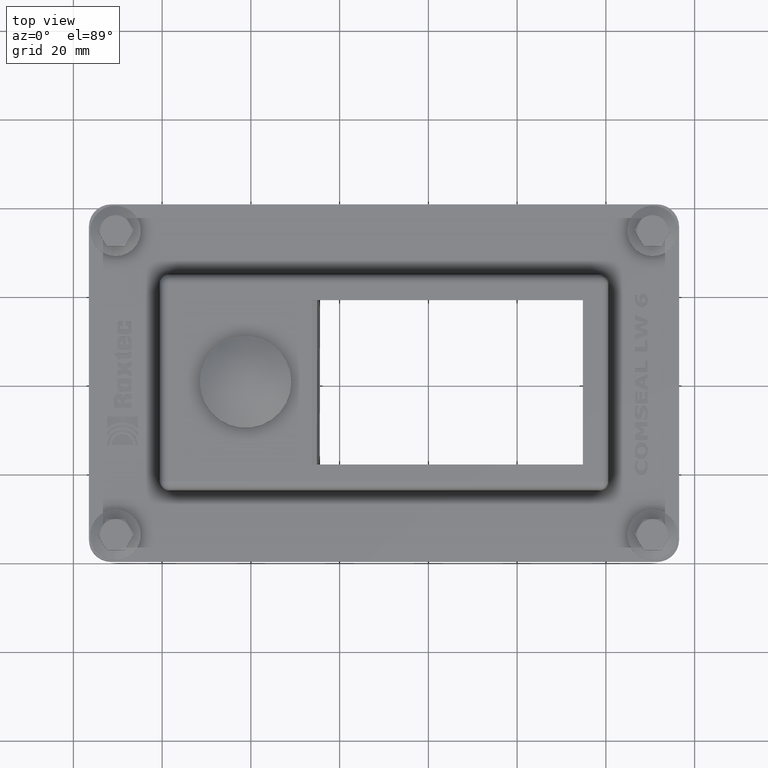
[diagram: clean part render]
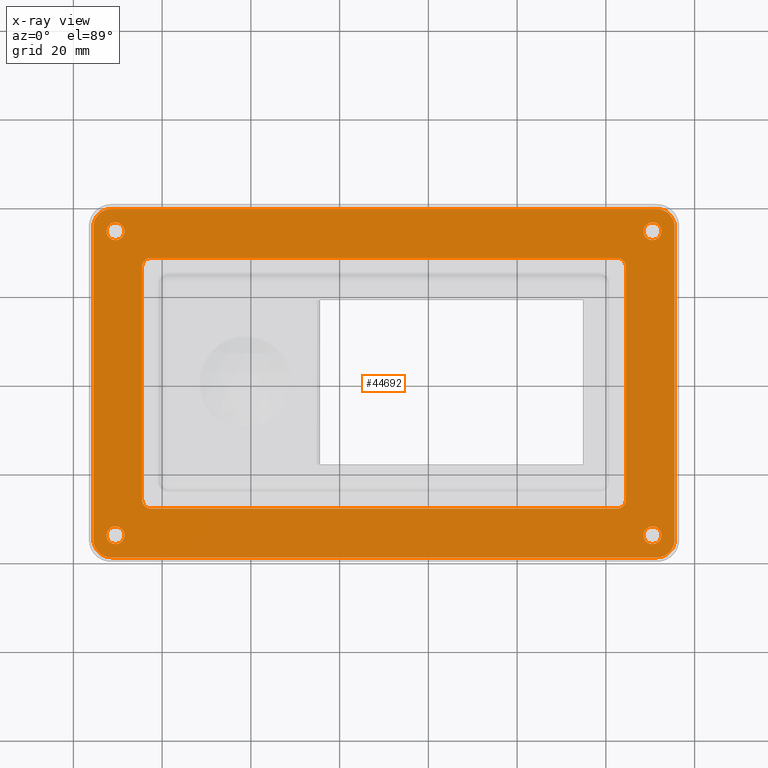
[diagram: x-ray — body ghosted, one internal face saturated and labeled with its STEP entity id]
A machine part, top view, then the same camera in x-ray: the body is ghosted and one INTERNAL B-rep face — a face not visible from any outside direction — is saturated and labeled: STEP entity #44692.
In plain terms, the highlighted planar face has unit normal (-0, -0, -1).
Its self-contained STEP definition (entity closure, byte-faithful):
#44463=CARTESIAN_POINT('',(65.5,35.25,0.0));
#44464=VERTEX_POINT('',#44463);
#44471=CARTESIAN_POINT('',(61.5,39.25,0.0));
#44472=VERTEX_POINT('',#44471);
#44473=CARTESIAN_POINT('',(61.5,35.25,0.0));
#44474=DIRECTION('',(0.0,0.0,1.0));
#44475=DIRECTION('',(0.707106781186548,0.707106781186547,0.0));
#44476=AXIS2_PLACEMENT_3D('',#44473,#44474,#44475);
#44477=CIRCLE('',#44476,4.0);
#44478=EDGE_CURVE('',#44464,#44472,#44477,.T.);
#44495=CARTESIAN_POINT('',(-61.5,39.25,0.0));
#44496=VERTEX_POINT('',#44495);
#44497=CARTESIAN_POINT('',(-61.5,39.25,0.0));
#44498=DIRECTION('',(1.0,0.0,0.0));
#44499=VECTOR('',#44498,123.00000000000001);
#44500=LINE('',#44497,#44499);
#44501=EDGE_CURVE('',#44496,#44472,#44500,.T.);
#44520=CARTESIAN_POINT('',(0.0,-4.538208E-016,0.0));
#44521=DIRECTION('',(0.0,0.0,1.0));
#44522=DIRECTION('',(1.0,0.0,0.0));
#44523=AXIS2_PLACEMENT_3D('',#44520,#44521,#44522);
#44524=PLANE('',#44523);
#44525=ORIENTED_EDGE('',*,*,#44478,.F.);
#44526=CARTESIAN_POINT('',(65.5,-35.249999999999993,0.0));
#44527=VERTEX_POINT('',#44526);
#44528=CARTESIAN_POINT('',(65.5,35.25,0.0));
#44529=DIRECTION('',(0.0,-1.0,0.0));
#44530=VECTOR('',#44529,70.5);
#44531=LINE('',#44528,#44530);
#44532=EDGE_CURVE('',#44464,#44527,#44531,.T.);
#44533=ORIENTED_EDGE('',*,*,#44532,.T.);
#44534=CARTESIAN_POINT('',(61.5,-39.25,0.0));
#44535=VERTEX_POINT('',#44534);
#44536=CARTESIAN_POINT('',(61.5,-35.249999999999993,0.0));
#44537=DIRECTION('',(0.0,0.0,1.0));
#44538=DIRECTION('',(0.707106781186548,-0.707106781186548,0.0));
#44539=AXIS2_PLACEMENT_3D('',#44536,#44537,#44538);
#44540=CIRCLE('',#44539,4.0);
#44541=EDGE_CURVE('',#44535,#44527,#44540,.T.);
#44542=ORIENTED_EDGE('',*,*,#44541,.F.);
#44543=CARTESIAN_POINT('',(-61.5,-39.25,0.0));
#44544=VERTEX_POINT('',#44543);
#44545=CARTESIAN_POINT('',(61.5,-39.25,0.0));
#44546=DIRECTION('',(-1.0,0.0,0.0));
#44547=VECTOR('',#44546,123.00000000000001);
#44548=LINE('',#44545,#44547);
#44549=EDGE_CURVE('',#44535,#44544,#44548,.T.);
#44550=ORIENTED_EDGE('',*,*,#44549,.T.);
#44551=CARTESIAN_POINT('',(-65.5,-35.25,0.0));
#44552=VERTEX_POINT('',#44551);
#44553=CARTESIAN_POINT('',(-61.5,-35.25,0.0));
#44554=DIRECTION('',(0.0,0.0,1.0));
#44555=DIRECTION('',(-0.707106781186548,-0.707106781186547,0.0));
#44556=AXIS2_PLACEMENT_3D('',#44553,#44554,#44555);
#44557=CIRCLE('',#44556,4.0);
#44558=EDGE_CURVE('',#44552,#44544,#44557,.T.);
#44559=ORIENTED_EDGE('',*,*,#44558,.F.);
#44560=CARTESIAN_POINT('',(-65.5,35.249999999999993,0.0));
#44561=VERTEX_POINT('',#44560);
#44562=CARTESIAN_POINT('',(-65.5,-35.25,0.0));
#44563=DIRECTION('',(0.0,1.0,0.0));
#44564=VECTOR('',#44563,70.5);
#44565=LINE('',#44562,#44564);
#44566=EDGE_CURVE('',#44552,#44561,#44565,.T.);
#44567=ORIENTED_EDGE('',*,*,#44566,.T.);
#44568=CARTESIAN_POINT('',(-61.5,35.249999999999993,0.0));
#44569=DIRECTION('',(0.0,0.0,1.0));
#44570=DIRECTION('',(-0.707106781186548,0.707106781186548,0.0));
#44571=AXIS2_PLACEMENT_3D('',#44568,#44569,#44570);
#44572=CIRCLE('',#44571,4.0);
#44573=EDGE_CURVE('',#44496,#44561,#44572,.T.);
#44574=ORIENTED_EDGE('',*,*,#44573,.F.);
#44575=ORIENTED_EDGE('',*,*,#44501,.T.);
#44576=EDGE_LOOP('',(#44525,#44533,#44542,#44550,#44559,#44567,#44574,#44575));
#44577=FACE_OUTER_BOUND('',#44576,.T.);
#44578=CARTESIAN_POINT('',(-58.500000000000007,-34.25,0.0));
#44579=VERTEX_POINT('',#44578);
#44580=CARTESIAN_POINT('',(-60.500000000000007,-34.25,0.0));
#44581=DIRECTION('',(0.0,0.0,1.0));
#44582=DIRECTION('',(-1.0,0.0,0.0));
#44583=AXIS2_PLACEMENT_3D('',#44580,#44581,#44582);
#44584=CIRCLE('',#44583,1.999999999999999);
#44585=EDGE_CURVE('',#44579,#44579,#44584,.T.);
#44586=ORIENTED_EDGE('',*,*,#44585,.T.);
#44587=EDGE_LOOP('',(#44586));
#44588=FACE_BOUND('',#44587,.T.);
#44589=CARTESIAN_POINT('',(62.500000000000007,-34.25,0.0));
#44590=VERTEX_POINT('',#44589);
#44591=CARTESIAN_POINT('',(60.500000000000007,-34.25,0.0));
#44592=DIRECTION('',(0.0,0.0,1.0));
#44593=DIRECTION('',(-1.0,0.0,0.0));
#44594=AXIS2_PLACEMENT_3D('',#44591,#44592,#44593);
#44595=CIRCLE('',#44594,2.000000000000001);
#44596=EDGE_CURVE('',#44590,#44590,#44595,.T.);
#44597=ORIENTED_EDGE('',*,*,#44596,.T.);
#44598=EDGE_LOOP('',(#44597));
#44599=FACE_BOUND('',#44598,.T.);
#44600=CARTESIAN_POINT('',(62.500000000000007,34.25,0.0));
#44601=VERTEX_POINT('',#44600);
#44602=CARTESIAN_POINT('',(60.500000000000007,34.25,0.0));
#44603=DIRECTION('',(0.0,0.0,1.0));
#44604=DIRECTION('',(-1.0,0.0,0.0));
#44605=AXIS2_PLACEMENT_3D('',#44602,#44603,#44604);
#44606=CIRCLE('',#44605,2.0);
#44607=EDGE_CURVE('',#44601,#44601,#44606,.T.);
#44608=ORIENTED_EDGE('',*,*,#44607,.T.);
#44609=EDGE_LOOP('',(#44608));
#44610=FACE_BOUND('',#44609,.T.);
#44611=CARTESIAN_POINT('',(-58.500000000000007,34.25,0.0));
#44612=VERTEX_POINT('',#44611);
#44613=CARTESIAN_POINT('',(-60.500000000000007,34.25,0.0));
#44614=DIRECTION('',(0.0,0.0,1.0));
#44615=DIRECTION('',(-1.0,0.0,0.0));
#44616=AXIS2_PLACEMENT_3D('',#44613,#44614,#44615);
#44617=CIRCLE('',#44616,2.0);
#44618=EDGE_CURVE('',#44612,#44612,#44617,.T.);
#44619=ORIENTED_EDGE('',*,*,#44618,.T.);
#44620=EDGE_LOOP('',(#44619));
#44621=FACE_BOUND('',#44620,.T.);
#44622=CARTESIAN_POINT('',(54.500000000000014,-26.249999999999993,0.0));
#44623=VERTEX_POINT('',#44622);
#44624=CARTESIAN_POINT('',(54.500000000000014,26.250000000000021,0.0));
#44625=VERTEX_POINT('',#44624);
#44626=CARTESIAN_POINT('',(54.500000000000014,-26.249999999999993,0.0));
#44627=DIRECTION('',(0.0,1.0,0.0));
#44628=VECTOR('',#44627,52.500000000000014);
#44629=LINE('',#44626,#44628);
#44630=EDGE_CURVE('',#44623,#44625,#44629,.T.);
#44631=ORIENTED_EDGE('',*,*,#44630,.T.);
#44632=CARTESIAN_POINT('',(52.500000000000014,28.250000000000025,0.0));
#44633=VERTEX_POINT('',#44632);
#44634=CARTESIAN_POINT('',(52.500000000000014,26.250000000000021,0.0));
#44635=DIRECTION('',(0.0,0.0,-1.0));
#44636=DIRECTION('',(0.707106781186546,0.707106781186549,0.0));
#44637=AXIS2_PLACEMENT_3D('',#44634,#44635,#44636);
#44638=CIRCLE('',#44637,2.0);
#44639=EDGE_CURVE('',#44633,#44625,#44638,.T.);
#44640=ORIENTED_EDGE('',*,*,#44639,.F.);
#44641=CARTESIAN_POINT('',(-52.500000000000014,28.250000000000025,0.0));
#44642=VERTEX_POINT('',#44641);
#44643=CARTESIAN_POINT('',(52.500000000000021,28.250000000000025,0.0));
#44644=DIRECTION('',(-1.0,0.0,0.0));
#44645=VECTOR('',#44644,105.00000000000004);
#44646=LINE('',#44643,#44645);
#44647=EDGE_CURVE('',#44633,#44642,#44646,.T.);
#44648=ORIENTED_EDGE('',*,*,#44647,.T.);
#44649=CARTESIAN_POINT('',(-54.500000000000014,26.250000000000028,0.0));
#44650=VERTEX_POINT('',#44649);
#44651=CARTESIAN_POINT('',(-52.500000000000014,26.250000000000021,0.0));
#44652=DIRECTION('',(0.0,0.0,-1.0));
#44653=DIRECTION('',(-0.707106781186546,0.707106781186549,0.0));
#44654=AXIS2_PLACEMENT_3D('',#44651,#44652,#44653);
#44655=CIRCLE('',#44654,2.0);
#44656=EDGE_CURVE('',#44650,#44642,#44655,.T.);
#44657=ORIENTED_EDGE('',*,*,#44656,.F.);
#44658=CARTESIAN_POINT('',(-54.500000000000014,-26.249999999999996,0.0));
#44659=VERTEX_POINT('',#44658);
#44660=CARTESIAN_POINT('',(-54.500000000000014,26.250000000000021,0.0));
#44661=DIRECTION('',(0.0,-1.0,0.0));
#44662=VECTOR('',#44661,52.500000000000014);
#44663=LINE('',#44660,#44662);
#44664=EDGE_CURVE('',#44650,#44659,#44663,.T.);
#44665=ORIENTED_EDGE('',*,*,#44664,.T.);
#44666=CARTESIAN_POINT('',(-52.500000000000014,-28.249999999999996,0.0));
#44667=VERTEX_POINT('',#44666);
#44668=CARTESIAN_POINT('',(-52.500000000000014,-26.249999999999996,0.0));
#44669=DIRECTION('',(0.0,0.0,-1.0));
#44670=DIRECTION('',(-0.707106781186546,-0.707106781186549,0.0));
#44671=AXIS2_PLACEMENT_3D('',#44668,#44669,#44670);
#44672=CIRCLE('',#44671,2.0);
#44673=EDGE_CURVE('',#44667,#44659,#44672,.T.);
#44674=ORIENTED_EDGE('',*,*,#44673,.F.);
#44675=CARTESIAN_POINT('',(52.500000000000014,-28.249999999999996,0.0));
#44676=VERTEX_POINT('',#44675);
#44677=CARTESIAN_POINT('',(-52.500000000000021,-28.249999999999996,0.0));
#44678=DIRECTION('',(1.0,0.0,0.0));
#44679=VECTOR('',#44678,105.00000000000004);
#44680=LINE('',#44677,#44679);
#44681=EDGE_CURVE('',#44667,#44676,#44680,.T.);
#44682=ORIENTED_EDGE('',*,*,#44681,.T.);
#44683=CARTESIAN_POINT('',(52.500000000000014,-26.249999999999996,0.0));
#44684=DIRECTION('',(0.0,0.0,-1.0));
#44685=DIRECTION('',(0.707106781186546,-0.707106781186549,0.0));
#44686=AXIS2_PLACEMENT_3D('',#44683,#44684,#44685);
#44687=CIRCLE('',#44686,2.0);
#44688=EDGE_CURVE('',#44623,#44676,#44687,.T.);
#44689=ORIENTED_EDGE('',*,*,#44688,.F.);
#44690=EDGE_LOOP('',(#44631,#44640,#44648,#44657,#44665,#44674,#44682,#44689));
#44691=FACE_BOUND('',#44690,.T.);
#44692=ADVANCED_FACE('',(#44577,#44588,#44599,#44610,#44621,#44691),#44524,.F.);